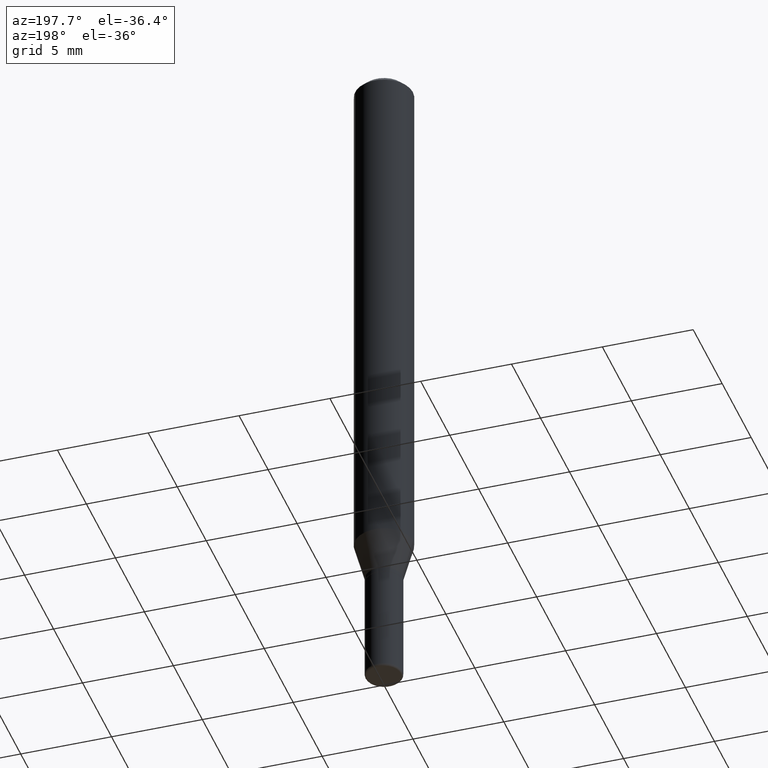
[diagram: clean part render]
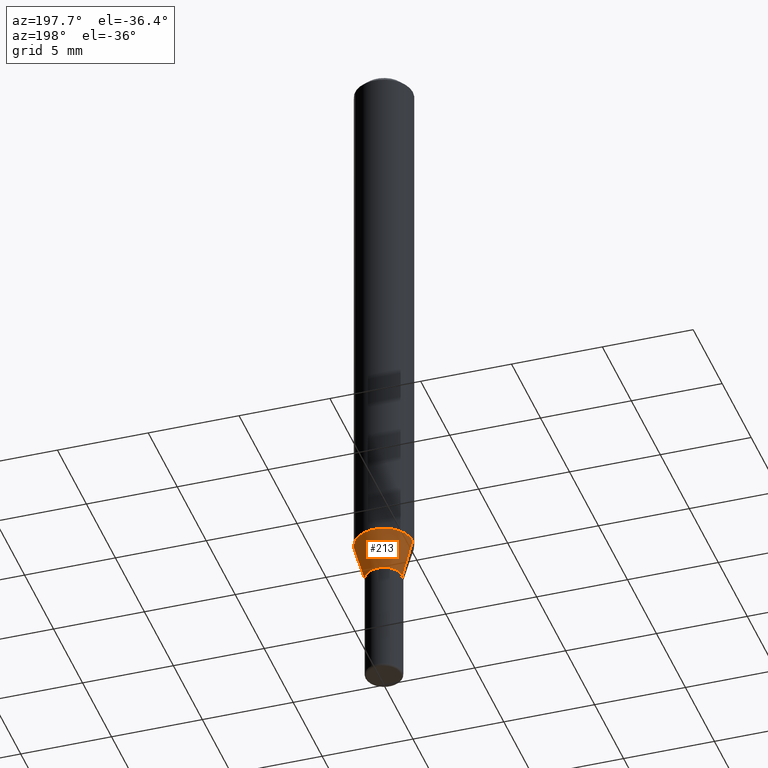
[diagram: same view with one face highlighted and labeled with its STEP entity id]
A machine part, auxiliary view. The second image highlights one B-rep face of the part: STEP entity #213.
In plain terms, the highlighted conical surface has half-angle 15 deg.
Its self-contained STEP definition (entity closure, byte-faithful):
#17 = CARTESIAN_POINT ( 'NONE',  ( -0.06250000000000000000, -3.627078784323440528E-15, -1.166028856829699700 ) ) ;
#38 = VERTEX_POINT ( 'NONE', #83 ) ;
#40 = DIRECTION ( 'NONE',  ( 0.2588190451025207395, 1.565188264969626109E-15, 0.9659258262890682012 ) ) ;
#54 = DIRECTION ( 'NONE',  ( -2.445468806185136597E-29, 3.491481338843145583E-15, 1.000000000000000000 ) ) ;
#58 = DIRECTION ( 'NONE',  ( 1.000000000000000000, -6.982962677686260400E-15, 0.000000000000000000 ) ) ;
#83 = CARTESIAN_POINT ( 'NONE',  ( 0.06250000000000000000, -4.507603161528894025E-15, -1.166028856829699700 ) ) ;
#88 = ORIENTED_EDGE ( 'NONE', *, *, #119, .T. ) ;
#100 = CIRCLE ( 'NONE', #263, 0.06250000000000000000 ) ;
#108 = ORIENTED_EDGE ( 'NONE', *, *, #129, .F. ) ;
#114 = ORIENTED_EDGE ( 'NONE', *, *, #430, .F. ) ;
#119 = EDGE_CURVE ( 'NONE', #478, #508, #404, .T. ) ;
#121 = DIRECTION ( 'NONE',  ( -0.2588190451025207395, 5.211531920934546309E-15, 0.9659258262890682012 ) ) ;
#129 = EDGE_CURVE ( 'NONE', #504, #38, #364, .T. ) ;
#147 = ORIENTED_EDGE ( 'NONE', *, *, #211, .T. ) ;
#152 = DIRECTION ( 'NONE',  ( -2.445468806185136597E-29, 3.491481338843145583E-15, 1.000000000000000000 ) ) ;
#184 = VECTOR ( 'NONE', #121, 39.37007874015748854 ) ;
#210 = CARTESIAN_POINT ( 'NONE',  ( -0.03999999999999993144, -4.080134579249892145E-15, -1.249999999999999778 ) ) ;
#211 = EDGE_CURVE ( 'NONE', #504, #478, #239, .T. ) ;
#212 = CARTESIAN_POINT ( 'NONE',  ( 0.03999999999999993144, -4.643670180661380931E-15, -1.249999999999999778 ) ) ;
#213 = ADVANCED_FACE ( 'NONE', ( #406 ), #262, .T. ) ;
#239 = CIRCLE ( 'NONE', #396, 0.03999999999999993144 ) ;
#258 = DIRECTION ( 'NONE',  ( -2.445468806185136597E-29, 3.491481338843145583E-15, 1.000000000000000000 ) ) ;
#259 = CARTESIAN_POINT ( 'NONE',  ( 3.056836007731420185E-29, -4.364351673553931682E-15, -1.249999999999999778 ) ) ;
#262 = CONICAL_SURFACE ( 'NONE', #454, 0.03999999999999993144, 0.2617993877991494633 ) ;
#263 = AXIS2_PLACEMENT_3D ( 'NONE', #507, #152, #344 ) ;
#283 = VECTOR ( 'NONE', #40, 39.37007874015748854 ) ;
#302 = CARTESIAN_POINT ( 'NONE',  ( 0.03999999999999993144, -4.643670180661380931E-15, -1.249999999999999778 ) ) ;
#334 = CARTESIAN_POINT ( 'NONE',  ( 3.056836007731420185E-29, -4.364351673553931682E-15, -1.249999999999999778 ) ) ;
#344 = DIRECTION ( 'NONE',  ( 1.000000000000000000, -6.982962677686262766E-15, 0.000000000000000000 ) ) ;
#364 = LINE ( 'NONE', #212, #283 ) ;
#378 = DIRECTION ( 'NONE',  ( 1.000000000000000000, -6.982962677686260400E-15, 0.000000000000000000 ) ) ;
#396 = AXIS2_PLACEMENT_3D ( 'NONE', #259, #258, #58 ) ;
#404 = LINE ( 'NONE', #210, #184 ) ;
#406 = FACE_OUTER_BOUND ( 'NONE', #416, .T. ) ;
#416 = EDGE_LOOP ( 'NONE', ( #147, #88, #114, #108 ) ) ;
#430 = EDGE_CURVE ( 'NONE', #38, #508, #100, .T. ) ;
#454 = AXIS2_PLACEMENT_3D ( 'NONE', #334, #54, #378 ) ;
#459 = CARTESIAN_POINT ( 'NONE',  ( -0.03999999999999993144, -3.853606681786666336E-15, -1.249999999999999778 ) ) ;
#478 = VERTEX_POINT ( 'NONE', #459 ) ;
#504 = VERTEX_POINT ( 'NONE', #302 ) ;
#507 = CARTESIAN_POINT ( 'NONE',  ( 2.851487196488745443E-29, -4.071167994173502356E-15, -1.166028856829699700 ) ) ;
#508 = VERTEX_POINT ( 'NONE', #17 ) ;